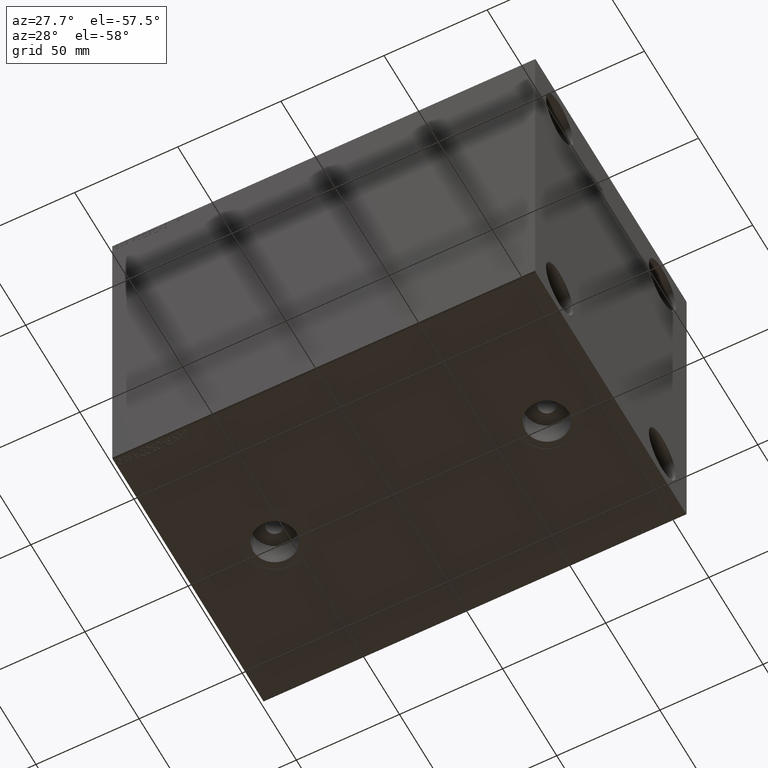
[diagram: clean part render]
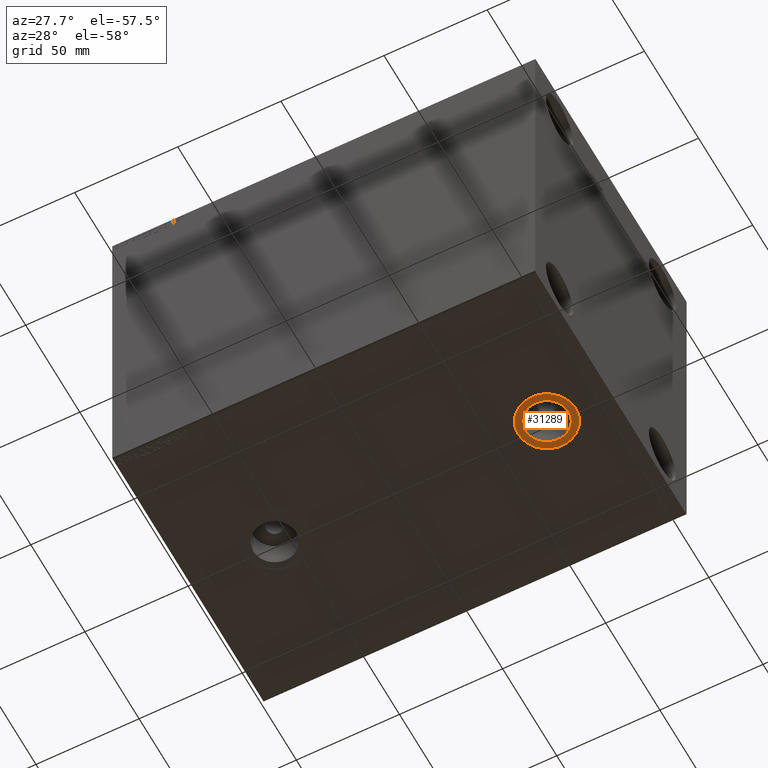
[diagram: same view with one face highlighted and labeled with its STEP entity id]
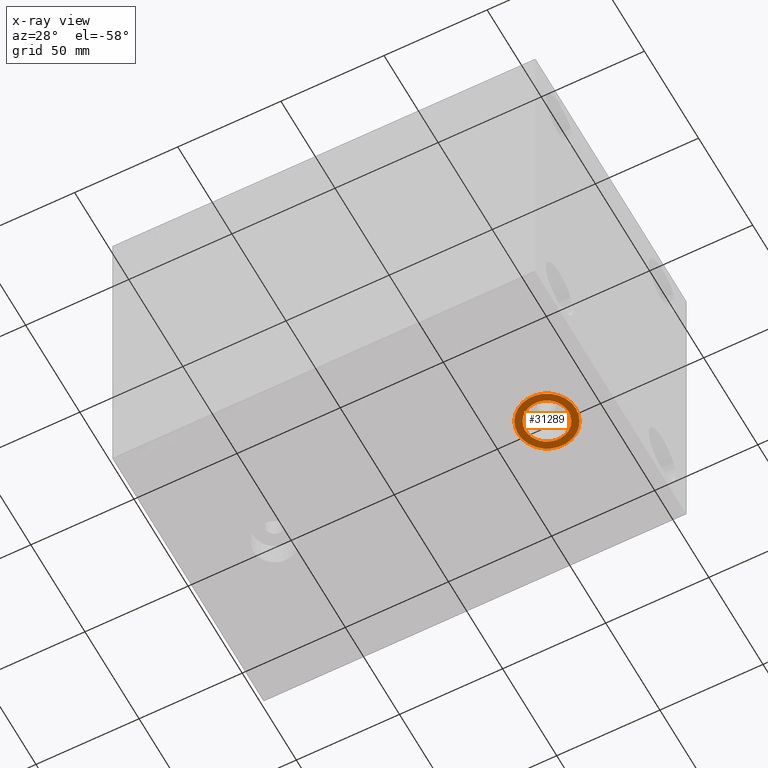
[diagram: x-ray of the same camera — body ghosted, the highlighted face saturated]
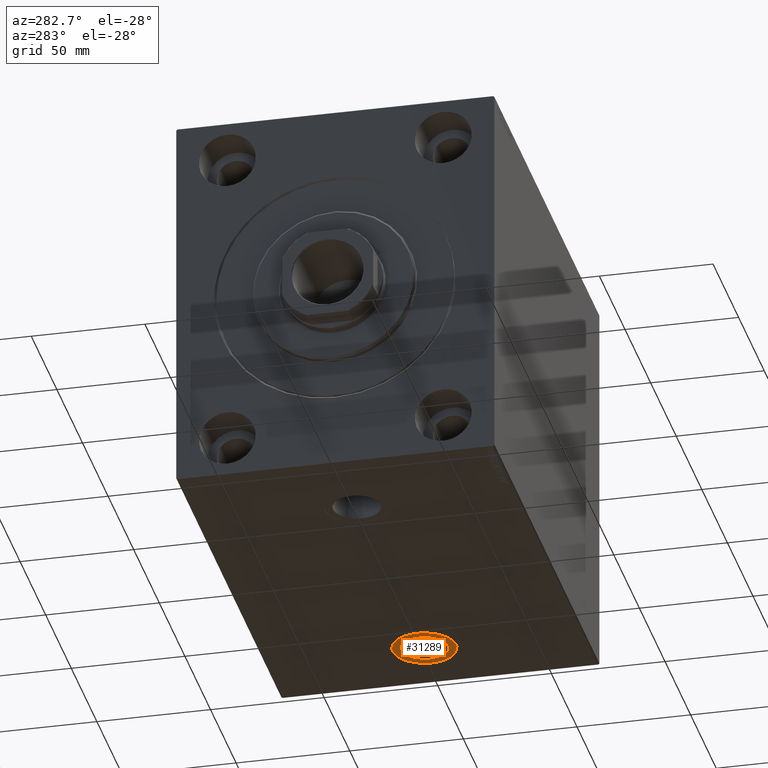
[diagram: same view with one face highlighted and labeled with its STEP entity id]
A machine part, auxiliary view. The second image highlights one B-rep face of the part: STEP entity #31289.
The next image is the same camera in x-ray: the body ghosted, the highlighted face saturated — about 0% of this face is hidden behind the body in this view.
A second angle (auxiliary view) of the same face is appended — the face is thin or edge-on in the first view.
In plain terms, the highlighted planar face has unit normal (0, 0, -1).
Its self-contained STEP definition (entity closure, byte-faithful):
#987 = CIRCLE ( 'NONE', #12725, 14.00000000000001243 ) ;
#1434 = EDGE_LOOP ( 'NONE', ( #30210, #33456 ) ) ;
#1826 = EDGE_LOOP ( 'NONE', ( #2849, #29357 ) ) ;
#2672 = AXIS2_PLACEMENT_3D ( 'NONE', #44092, #9712, #23676 ) ;
#2849 = ORIENTED_EDGE ( 'NONE', *, *, #14592, .T. ) ;
#3232 = DIRECTION ( 'NONE',  ( 0.000000000000000000, 0.000000000000000000, -1.000000000000000000 ) ) ;
#5086 = AXIS2_PLACEMENT_3D ( 'NONE', #37128, #13056, #12831 ) ;
#5815 = CARTESIAN_POINT ( 'NONE',  ( 184.4799999999999898, -1.689605533503377619E-14, -84.90000000000001990 ) ) ;
#9712 = DIRECTION ( 'NONE',  ( 0.000000000000000000, 0.000000000000000000, -1.000000000000000000 ) ) ;
#12725 = AXIS2_PLACEMENT_3D ( 'NONE', #28044, #25482, #38804 ) ;
#12831 = DIRECTION ( 'NONE',  ( -1.000000000000000000, 0.000000000000000000, 0.000000000000000000 ) ) ;
#13056 = DIRECTION ( 'NONE',  ( 0.000000000000000000, 0.000000000000000000, -1.000000000000000000 ) ) ;
#13904 = CIRCLE ( 'NONE', #5086, 10.47999999999998977 ) ;
#14592 = EDGE_CURVE ( 'NONE', #15254, #33638, #28819, .T. ) ;
#14724 = EDGE_CURVE ( 'NONE', #33638, #15254, #987, .T. ) ;
#15254 = VERTEX_POINT ( 'NONE', #31667 ) ;
#17441 = CARTESIAN_POINT ( 'NONE',  ( 174.0000000000000000, -1.817948518054020168E-14, -84.90000000000001990 ) ) ;
#17673 = PLANE ( 'NONE',  #45244 ) ;
#20665 = FACE_BOUND ( 'NONE', #1434, .T. ) ;
#23559 = EDGE_CURVE ( 'NONE', #42433, #32693, #40016, .T. ) ;
#23676 = DIRECTION ( 'NONE',  ( -1.000000000000000000, 0.000000000000000000, 0.000000000000000000 ) ) ;
#25482 = DIRECTION ( 'NONE',  ( 0.000000000000000000, 0.000000000000000000, -1.000000000000000000 ) ) ;
#28044 = CARTESIAN_POINT ( 'NONE',  ( 174.0000000000000000, -1.817948518054020168E-14, -84.90000000000001990 ) ) ;
#28227 = DIRECTION ( 'NONE',  ( -1.000000000000000000, 0.000000000000000000, -0.000000000000000000 ) ) ;
#28819 = CIRCLE ( 'NONE', #31736, 14.00000000000001243 ) ;
#29260 = CARTESIAN_POINT ( 'NONE',  ( 163.5200000000000102, -1.817948518054020168E-14, -84.90000000000001990 ) ) ;
#29357 = ORIENTED_EDGE ( 'NONE', *, *, #14724, .T. ) ;
#30210 = ORIENTED_EDGE ( 'NONE', *, *, #37019, .F. ) ;
#31289 = ADVANCED_FACE ( 'NONE', ( #20665, #34647 ), #17673, .T. ) ;
#31667 = CARTESIAN_POINT ( 'NONE',  ( 159.9999999999999716, -1.817948518054020168E-14, -84.90000000000001990 ) ) ;
#31736 = AXIS2_PLACEMENT_3D ( 'NONE', #33106, #40436, #43643 ) ;
#32693 = VERTEX_POINT ( 'NONE', #29260 ) ;
#33106 = CARTESIAN_POINT ( 'NONE',  ( 174.0000000000000000, -1.817948518054020168E-14, -84.90000000000001990 ) ) ;
#33456 = ORIENTED_EDGE ( 'NONE', *, *, #23559, .F. ) ;
#33638 = VERTEX_POINT ( 'NONE', #43471 ) ;
#34647 = FACE_OUTER_BOUND ( 'NONE', #1826, .T. ) ;
#37019 = EDGE_CURVE ( 'NONE', #32693, #42433, #13904, .T. ) ;
#37128 = CARTESIAN_POINT ( 'NONE',  ( 174.0000000000000000, -1.817948518054020168E-14, -84.90000000000001990 ) ) ;
#38804 = DIRECTION ( 'NONE',  ( -1.000000000000000000, 0.000000000000000000, 0.000000000000000000 ) ) ;
#40016 = CIRCLE ( 'NONE', #2672, 10.47999999999998977 ) ;
#40436 = DIRECTION ( 'NONE',  ( 0.000000000000000000, 0.000000000000000000, -1.000000000000000000 ) ) ;
#42433 = VERTEX_POINT ( 'NONE', #5815 ) ;
#43471 = CARTESIAN_POINT ( 'NONE',  ( 188.0000000000000000, -1.646497966173390960E-14, -84.90000000000001990 ) ) ;
#43643 = DIRECTION ( 'NONE',  ( -1.000000000000000000, 0.000000000000000000, 0.000000000000000000 ) ) ;
#44092 = CARTESIAN_POINT ( 'NONE',  ( 174.0000000000000000, -1.817948518054020168E-14, -84.90000000000001990 ) ) ;
#45244 = AXIS2_PLACEMENT_3D ( 'NONE', #17441, #3232, #28227 ) ;